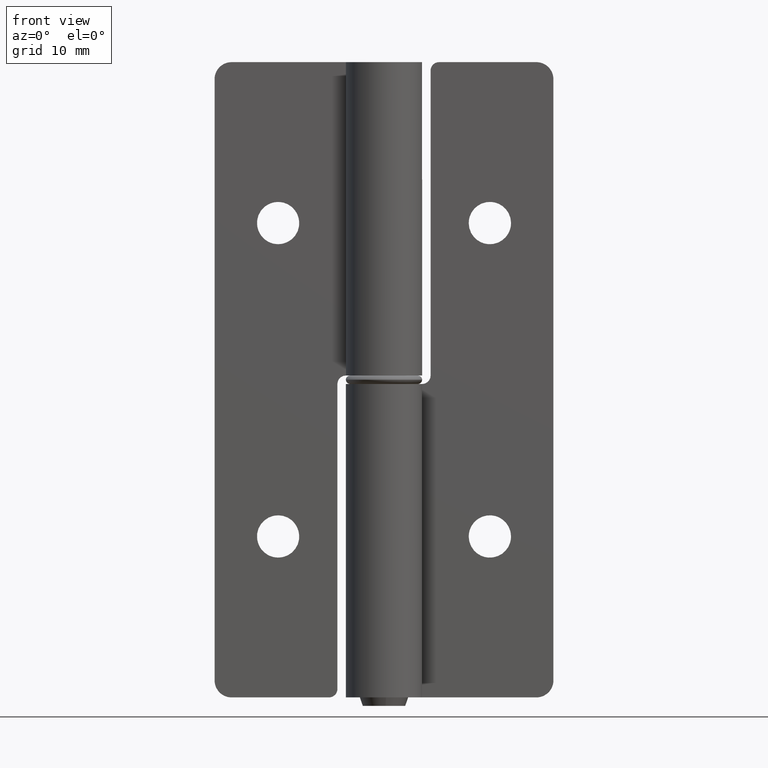
[diagram: clean part render]
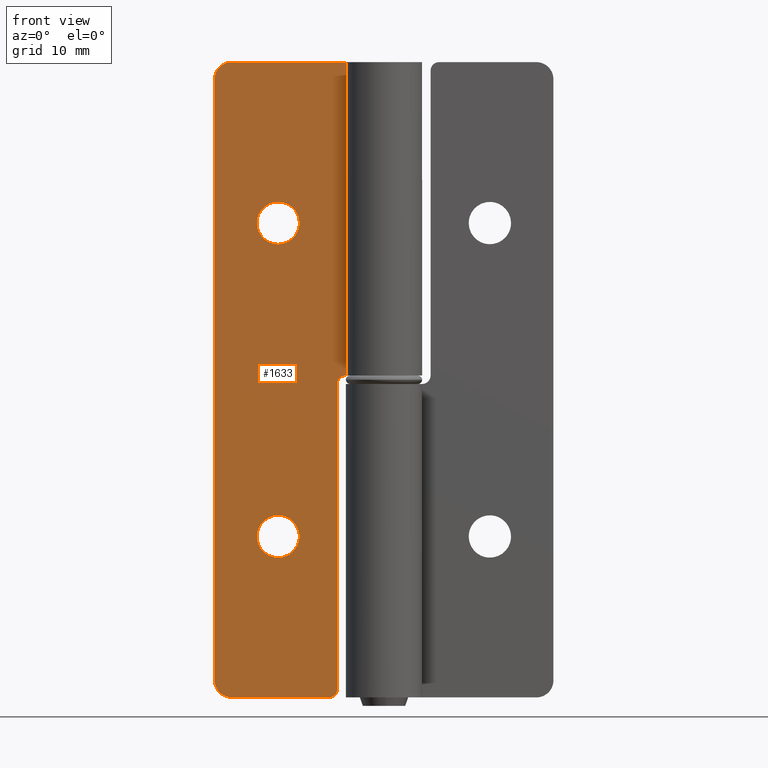
[diagram: same view with one face highlighted and labeled with its STEP entity id]
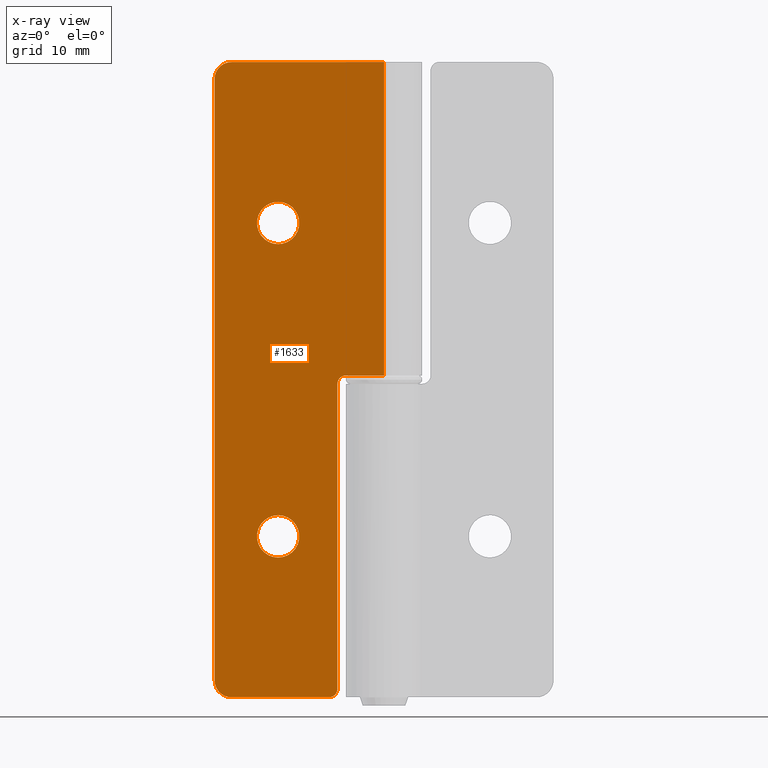
[diagram: x-ray of the same camera — body ghosted, the highlighted face saturated]
A machine part, front view. The second image highlights one B-rep face of the part: STEP entity #1633.
The next image is the same camera in x-ray: the body ghosted, the highlighted face saturated — about 0% of this face is hidden behind the body in this view.
In plain terms, the highlighted face is a freeform B-spline surface patch.
Its self-contained STEP definition (entity closure, byte-faithful):
#1160=CARTESIAN_POINT('',(-12.500000000000140,2.499999999999945,53.500000000000000));
#1161=VERTEX_POINT('',#1160);
#1162=CARTESIAN_POINT('',(-10.876382457319361,2.500000000000352,54.098982884062387));
#1163=VERTEX_POINT('',#1162);
#1164=CARTESIAN_POINT('',(-12.500000000000140,2.499999999999945,53.500000000000000));
#1165=CARTESIAN_POINT('',(-11.577703233191032,2.500000000000148,53.500000000000881));
#1166=CARTESIAN_POINT('',(-10.876382457319357,2.500000000000352,54.098982884062394));
#1174=(BOUNDED_CURVE()B_SPLINE_CURVE(2,(#1164,#1165,#1166),.UNSPECIFIED.,.F.,.U.)B_SPLINE_CURVE_WITH_KNOTS((3,3),(0.0,0.113142956399866),.UNSPECIFIED.)CURVE()GEOMETRIC_REPRESENTATION_ITEM()RATIONAL_B_SPLINE_CURVE((1.0,0.867444781255893,0.854871077191299))REPRESENTATION_ITEM(''));
#1175=EDGE_CURVE('',#1161,#1163,#1174,.T.);
#1216=CARTESIAN_POINT('',(-14.123617542680931,2.500000000000352,57.901017115937599));
#1217=VERTEX_POINT('',#1216);
#1223=CARTESIAN_POINT('',(-14.123617542680931,2.500000000000352,57.901017115937599));
#1224=CARTESIAN_POINT('',(-14.280336642357980,2.500000000000349,57.767213135960468));
#1225=CARTESIAN_POINT('',(-14.582004050924150,2.500000000000325,57.437005605738022));
#1226=CARTESIAN_POINT('',(-14.852461163643479,2.500000000000294,56.909867344727118));
#1227=CARTESIAN_POINT('',(-14.980079275691430,2.500000000000254,56.400610922969307));
#1228=CARTESIAN_POINT('',(-15.012080633061499,2.500000000000234,55.972275443136702));
#1229=CARTESIAN_POINT('',(-14.963016923892759,2.500000000000171,55.465556580316729));
#1230=CARTESIAN_POINT('',(-14.769650093389931,2.500000000000131,54.872556174301302));
#1231=CARTESIAN_POINT('',(-14.407060806353950,2.500000000000069,54.343468631053099));
#1232=CARTESIAN_POINT('',(-13.929344895587841,2.500000000000023,53.922145391152171));
#1233=CARTESIAN_POINT('',(-13.324109761566380,2.499999999999978,53.595709955453302));
#1234=CARTESIAN_POINT('',(-12.801193511983200,2.499999999999953,53.499752994745300));
#1235=CARTESIAN_POINT('',(-12.500000000000140,2.499999999999945,53.500000000000000));
#1236=B_SPLINE_CURVE_WITH_KNOTS('',3,(#1223,#1224,#1225,#1226,#1227,#1228,#1229,#1230,#1231,#1232,#1233,#1234,#1235),.UNSPECIFIED.,.F.,.U.,(4,1,1,1,1,1,1,1,1,1,4),(0.000000074324507,0.618217560293877,1.331543754147683,1.759530250661867,2.187425377031808,2.615470415464582,3.281209286369857,4.042101598057029,4.517648837522545,5.183428656555207,6.086930906835336),.UNSPECIFIED.);
#1237=EDGE_CURVE('',#1217,#1161,#1236,.T.);
#1260=CARTESIAN_POINT('',(-12.500000000000140,2.499999999999945,58.500000000000000));
#1261=VERTEX_POINT('',#1260);
#1262=CARTESIAN_POINT('',(-10.876382457319361,2.500000000000352,54.098982884062387));
#1263=CARTESIAN_POINT('',(-10.719665353697680,2.500000000000345,54.232786958979098));
#1264=CARTESIAN_POINT('',(-10.417984817550529,2.500000000000329,54.562992661480457));
#1265=CARTESIAN_POINT('',(-10.147570330855549,2.500000000000295,55.090137113619740));
#1266=CARTESIAN_POINT('',(-10.000496795613889,2.500000000000249,55.676546695950577));
#1267=CARTESIAN_POINT('',(-9.986258412994092,2.500000000000205,56.204066175586597));
#1268=CARTESIAN_POINT('',(-10.088163026517160,2.500000000000166,56.703298884999732));
#1269=CARTESIAN_POINT('',(-10.244358253404011,2.500000000000126,57.103107427674502));
#1270=CARTESIAN_POINT('',(-10.454940881871281,2.500000000000094,57.459130242743932));
#1271=CARTESIAN_POINT('',(-10.784945696350359,2.500000000000033,57.846823979650139));
#1272=CARTESIAN_POINT('',(-11.206117701154740,2.500000000000023,58.164814528701328));
#1273=CARTESIAN_POINT('',(-11.802668273923960,2.499999999999962,58.430074743721150));
#1274=CARTESIAN_POINT('',(-12.230512697950431,2.499999999999957,58.500179039604802));
#1275=CARTESIAN_POINT('',(-12.500000000000140,2.499999999999945,58.500000000000000));
#1276=B_SPLINE_CURVE_WITH_KNOTS('',3,(#1262,#1263,#1264,#1265,#1266,#1267,#1268,#1269,#1270,#1271,#1272,#1273,#1274,#1275),.UNSPECIFIED.,.F.,.U.,(4,1,1,1,1,1,1,1,1,1,1,4),(0.000000074327796,0.618217560297129,1.331543754151031,1.759530250664761,2.425213370837776,2.900801197558387,3.281209286371289,3.709221679559501,4.137213149144320,4.802975438079724,5.278547753897241,6.086930906835341),.UNSPECIFIED.);
#1277=EDGE_CURVE('',#1163,#1261,#1276,.T.);
#1279=CARTESIAN_POINT('',(-12.500000000000140,2.499999999999945,58.500000000000000));
#1280=CARTESIAN_POINT('',(-13.422296766809255,2.500000000000149,58.499999999999133));
#1281=CARTESIAN_POINT('',(-14.123617542680922,2.500000000000352,57.901017115937606));
#1289=(BOUNDED_CURVE()B_SPLINE_CURVE(2,(#1279,#1280,#1281),.UNSPECIFIED.,.F.,.U.)B_SPLINE_CURVE_WITH_KNOTS((3,3),(0.500000000000000,0.613142956399866),.UNSPECIFIED.)CURVE()GEOMETRIC_REPRESENTATION_ITEM()RATIONAL_B_SPLINE_CURVE((1.0,0.867444781255893,0.854871077191299))REPRESENTATION_ITEM(''));
#1290=EDGE_CURVE('',#1261,#1217,#1289,.T.);
#1345=CARTESIAN_POINT('',(-12.500000000000140,2.499999999999945,16.500000000000000));
#1346=VERTEX_POINT('',#1345);
#1347=CARTESIAN_POINT('',(-10.876382457319350,2.500000000000352,17.098982884062401));
#1348=VERTEX_POINT('',#1347);
#1349=CARTESIAN_POINT('',(-12.500000000000140,2.499999999999945,16.500000000000000));
#1350=CARTESIAN_POINT('',(-11.577703233191029,2.500000000000149,16.500000000000874));
#1351=CARTESIAN_POINT('',(-10.876382457319353,2.500000000000352,17.098982884062398));
#1359=(BOUNDED_CURVE()B_SPLINE_CURVE(2,(#1349,#1350,#1351),.UNSPECIFIED.,.F.,.U.)B_SPLINE_CURVE_WITH_KNOTS((3,3),(0.0,0.113142956399866),.UNSPECIFIED.)CURVE()GEOMETRIC_REPRESENTATION_ITEM()RATIONAL_B_SPLINE_CURVE((1.0,0.867444781255892,0.854871077191299))REPRESENTATION_ITEM(''));
#1360=EDGE_CURVE('',#1346,#1348,#1359,.T.);
#1401=CARTESIAN_POINT('',(-14.123617542680931,2.500000000000352,20.901017115937599));
#1402=VERTEX_POINT('',#1401);
#1408=CARTESIAN_POINT('',(-14.123617542680931,2.500000000000352,20.901017115937599));
#1409=CARTESIAN_POINT('',(-14.280342932808150,2.500000000000350,20.767217023112750));
#1410=CARTESIAN_POINT('',(-14.581992090577060,2.500000000000326,20.437009589961111));
#1411=CARTESIAN_POINT('',(-14.889045430432949,2.500000000000290,19.838621775210861));
#1412=CARTESIAN_POINT('',(-15.008603442995261,2.500000000000244,19.242814333219808));
#1413=CARTESIAN_POINT('',(-14.998409386871890,2.500000000000202,18.749750771730461));
#1414=CARTESIAN_POINT('',(-14.906308598343131,2.500000000000161,18.249465399560119));
#1415=CARTESIAN_POINT('',(-14.668852648660581,2.500000000000106,17.689182727120709));
#1416=CARTESIAN_POINT('',(-14.242614837335900,2.500000000000054,17.168918810711041));
#1417=CARTESIAN_POINT('',(-13.790583978637050,2.500000000000010,16.841029979159739));
#1418=CARTESIAN_POINT('',(-13.228994885715640,2.499999999999974,16.578296822248639));
#1419=CARTESIAN_POINT('',(-12.801209139517621,2.499999999999953,16.499743789160561));
#1420=CARTESIAN_POINT('',(-12.500000000000140,2.499999999999945,16.500000000000000));
#1421=B_SPLINE_CURVE_WITH_KNOTS('',3,(#1408,#1409,#1410,#1411,#1412,#1413,#1414,#1415,#1416,#1417,#1418,#1419,#1420),.UNSPECIFIED.,.F.,.U.,(4,1,1,1,1,1,1,1,1,1,4),(0.000000074327624,0.618217560296613,1.331543754150381,1.997309046539155,2.425213370837764,2.805653877333417,3.518990014435760,4.232321169525985,4.802975438079313,5.183428656555062,6.086930906835332),.UNSPECIFIED.);
#1422=EDGE_CURVE('',#1402,#1346,#1421,.T.);
#1445=CARTESIAN_POINT('',(-12.500000000000140,2.499999999999945,21.500000000000000));
#1446=VERTEX_POINT('',#1445);
#1447=CARTESIAN_POINT('',(-10.876382457319350,2.500000000000352,17.098982884062401));
#1448=CARTESIAN_POINT('',(-10.743785951002661,2.500000000000346,17.212209264186441));
#1449=CARTESIAN_POINT('',(-10.480447871797510,2.500000000000334,17.489659543117490));
#1450=CARTESIAN_POINT('',(-10.156798240461750,2.500000000000305,18.040532694992230));
#1451=CARTESIAN_POINT('',(-9.978596999840468,2.500000000000218,18.723238140679008));
#1452=CARTESIAN_POINT('',(-10.003392237125130,2.500000000000213,19.347235849845379));
#1453=CARTESIAN_POINT('',(-10.129363733235470,2.500000000000149,19.823676586198388));
#1454=CARTESIAN_POINT('',(-10.300620262409200,2.500000000000116,20.217250195690291));
#1455=CARTESIAN_POINT('',(-10.567103608865210,2.500000000000076,20.614261574279091));
#1456=CARTESIAN_POINT('',(-10.978873774629520,2.500000000000031,21.013868861944552));
#1457=CARTESIAN_POINT('',(-11.474840404049910,2.499999999999990,21.306222205744518));
#1458=CARTESIAN_POINT('',(-12.008636366608959,2.499999999999963,21.468243051069141));
#1459=CARTESIAN_POINT('',(-12.341500951360430,2.499999999999950,21.500013918531678));
#1460=CARTESIAN_POINT('',(-12.500000000000140,2.499999999999945,21.500000000000000));
#1461=B_SPLINE_CURVE_WITH_KNOTS('',3,(#1447,#1448,#1449,#1450,#1451,#1452,#1453,#1454,#1455,#1456,#1457,#1458,#1459,#1460),.UNSPECIFIED.,.F.,.U.,(4,1,1,1,1,1,1,1,1,1,1,4),(0.000000074328178,0.523096819058107,1.141317920091738,1.902181426216839,2.615470415467204,2.995877213637523,3.376326897770434,3.899436858093838,4.422546086762807,5.088300084256360,5.611428042491841,6.086930906835335),.UNSPECIFIED.);
#1462=EDGE_CURVE('',#1348,#1446,#1461,.T.);
#1464=CARTESIAN_POINT('',(-12.500000000000140,2.499999999999945,21.500000000000000));
#1465=CARTESIAN_POINT('',(-13.422296766809250,2.500000000000148,21.499999999999133));
#1466=CARTESIAN_POINT('',(-14.123617542680924,2.500000000000352,20.901017115937609));
#1474=(BOUNDED_CURVE()B_SPLINE_CURVE(2,(#1464,#1465,#1466),.UNSPECIFIED.,.F.,.U.)B_SPLINE_CURVE_WITH_KNOTS((3,3),(0.500000000000000,0.613142956399866),.UNSPECIFIED.)CURVE()GEOMETRIC_REPRESENTATION_ITEM()RATIONAL_B_SPLINE_CURVE((1.0,0.867444781255892,0.854871077191299))REPRESENTATION_ITEM(''));
#1475=EDGE_CURVE('',#1446,#1402,#1474,.T.);
#1512=CARTESIAN_POINT('',(-20.998999961219120,2.500000000000000,78.746249854635451));
#1513=CARTESIAN_POINT('',(-20.998999961219120,2.500000000000000,-3.746251866292208));
#1514=CARTESIAN_POINT('',(0.999000497694768,2.500000000000000,78.746249854635451));
#1515=CARTESIAN_POINT('',(0.999000497694768,2.500000000000000,-3.746251866292208));
#1516=B_SPLINE_SURFACE_WITH_KNOTS('',1,1,((#1512,#1514),(#1513,#1515)),.UNSPECIFIED.,.F.,.F.,.U.,(2,2),(2,2),(0.0,82.492501720927663),(0.0,21.998000458913879),.UNSPECIFIED.);
#1517=CARTESIAN_POINT('',(-19.999999999983000,2.500000000000000,73.0));
#1518=VERTEX_POINT('',#1517);
#1519=CARTESIAN_POINT('',(-19.999999999983000,2.500000000000000,2.0));
#1520=VERTEX_POINT('',#1519);
#1521=CARTESIAN_POINT('',(-19.999999999983000,2.500000000000000,73.0));
#1522=CARTESIAN_POINT('',(-19.999999999983000,2.500000000000000,2.0));
#1523=QUASI_UNIFORM_CURVE('',1,(#1521,#1522),.UNSPECIFIED.,.F.,.U.);
#1524=EDGE_CURVE('',#1518,#1520,#1523,.T.);
#1525=ORIENTED_EDGE('',*,*,#1524,.T.);
#1526=CARTESIAN_POINT('',(-17.999999999983000,2.500000000000000,0.0));
#1527=VERTEX_POINT('',#1526);
#1528=CARTESIAN_POINT('',(-19.999999999983000,2.500000000000000,2.0));
#1529=CARTESIAN_POINT('',(-19.999999999983000,2.500000000000000,0.0));
#1530=CARTESIAN_POINT('',(-17.999999999983000,2.500000000000000,0.0));
#1538=(BOUNDED_CURVE()B_SPLINE_CURVE(2,(#1528,#1529,#1530),.UNSPECIFIED.,.F.,.U.)CURVE()GEOMETRIC_REPRESENTATION_ITEM()QUASI_UNIFORM_CURVE()RATIONAL_B_SPLINE_CURVE((1.0,0.707106781186548,1.0))REPRESENTATION_ITEM(''));
#1539=EDGE_CURVE('',#1520,#1527,#1538,.T.);
#1540=ORIENTED_EDGE('',*,*,#1539,.T.);
#1541=CARTESIAN_POINT('',(-6.500000000000000,2.500000000000000,0.0));
#1542=VERTEX_POINT('',#1541);
#1543=CARTESIAN_POINT('',(-6.500000000000000,2.500000000000000,0.0));
#1544=CARTESIAN_POINT('',(-17.999999999983000,2.500000000000000,0.0));
#1545=QUASI_UNIFORM_CURVE('',1,(#1543,#1544),.UNSPECIFIED.,.F.,.U.);
#1546=EDGE_CURVE('',#1542,#1527,#1545,.T.);
#1547=ORIENTED_EDGE('',*,*,#1546,.F.);
#1548=CARTESIAN_POINT('',(-5.500000000000000,2.500000000000000,1.0));
#1549=VERTEX_POINT('',#1548);
#1550=CARTESIAN_POINT('',(-6.500000000000000,2.500000000000000,0.0));
#1551=CARTESIAN_POINT('',(-5.500000000000001,2.499999999999945,0.0));
#1552=CARTESIAN_POINT('',(-5.500000000000000,2.499999999999945,1.0));
#1560=(BOUNDED_CURVE()B_SPLINE_CURVE(2,(#1550,#1551,#1552),.UNSPECIFIED.,.F.,.U.)CURVE()GEOMETRIC_REPRESENTATION_ITEM()QUASI_UNIFORM_CURVE()RATIONAL_B_SPLINE_CURVE((1.0,0.707106781186548,1.0))REPRESENTATION_ITEM(''));
#1561=EDGE_CURVE('',#1542,#1549,#1560,.T.);
#1562=ORIENTED_EDGE('',*,*,#1561,.T.);
#1563=CARTESIAN_POINT('',(-5.500000000000000,2.500000000000000,37.0));
#1564=VERTEX_POINT('',#1563);
#1565=CARTESIAN_POINT('',(-5.500000000000000,2.500000000000000,1.0));
#1566=CARTESIAN_POINT('',(-5.500000000000000,2.500000000000000,37.0));
#1567=QUASI_UNIFORM_CURVE('',1,(#1565,#1566),.UNSPECIFIED.,.F.,.U.);
#1568=EDGE_CURVE('',#1549,#1564,#1567,.T.);
#1569=ORIENTED_EDGE('',*,*,#1568,.T.);
#1570=CARTESIAN_POINT('',(-4.500000000000000,2.500000000000000,38.0));
#1571=VERTEX_POINT('',#1570);
#1572=CARTESIAN_POINT('',(-5.500000000000000,2.499999999999945,37.0));
#1573=CARTESIAN_POINT('',(-5.500000000000001,2.499999999999945,38.0));
#1574=CARTESIAN_POINT('',(-4.500000000000000,2.499999999999945,38.0));
#1582=(BOUNDED_CURVE()B_SPLINE_CURVE(2,(#1572,#1573,#1574),.UNSPECIFIED.,.F.,.U.)CURVE()GEOMETRIC_REPRESENTATION_ITEM()QUASI_UNIFORM_CURVE()RATIONAL_B_SPLINE_CURVE((1.0,0.707106781186548,1.0))REPRESENTATION_ITEM(''));
#1583=EDGE_CURVE('',#1564,#1571,#1582,.T.);
#1584=ORIENTED_EDGE('',*,*,#1583,.T.);
#1585=CARTESIAN_POINT('',(1.685423E-011,2.500000000000000,38.0));
#1586=VERTEX_POINT('',#1585);
#1587=CARTESIAN_POINT('',(-4.500000000000000,2.500000000000000,38.0));
#1588=CARTESIAN_POINT('',(1.685423E-011,2.500000000000000,38.0));
#1589=QUASI_UNIFORM_CURVE('',1,(#1587,#1588),.UNSPECIFIED.,.F.,.U.);
#1590=EDGE_CURVE('',#1571,#1586,#1589,.T.);
#1591=ORIENTED_EDGE('',*,*,#1590,.T.);
#1592=CARTESIAN_POINT('',(1.685423E-011,2.500000000000075,75.0));
#1593=VERTEX_POINT('',#1592);
#1594=CARTESIAN_POINT('',(1.685423E-011,2.500000000000075,75.0));
#1595=CARTESIAN_POINT('',(1.685423E-011,2.500000000000000,38.0));
#1596=QUASI_UNIFORM_CURVE('',1,(#1594,#1595),.UNSPECIFIED.,.F.,.U.);
#1597=EDGE_CURVE('',#1593,#1586,#1596,.T.);
#1598=ORIENTED_EDGE('',*,*,#1597,.F.);
#1599=CARTESIAN_POINT('',(-17.999999999983000,2.500000000000000,75.0));
#1600=VERTEX_POINT('',#1599);
#1601=CARTESIAN_POINT('',(1.685423E-011,2.500000000000075,75.0));
#1602=CARTESIAN_POINT('',(-17.999999999983000,2.500000000000000,75.0));
#1603=QUASI_UNIFORM_CURVE('',1,(#1601,#1602),.UNSPECIFIED.,.F.,.U.);
#1604=EDGE_CURVE('',#1593,#1600,#1603,.T.);
#1605=ORIENTED_EDGE('',*,*,#1604,.T.);
#1606=CARTESIAN_POINT('',(-17.999999999983000,2.500000000000000,75.0));
#1607=CARTESIAN_POINT('',(-19.999999999983000,2.500000000000000,75.000000000000014));
#1608=CARTESIAN_POINT('',(-19.999999999983000,2.500000000000000,73.0));
#1616=(BOUNDED_CURVE()B_SPLINE_CURVE(2,(#1606,#1607,#1608),.UNSPECIFIED.,.F.,.U.)CURVE()GEOMETRIC_REPRESENTATION_ITEM()QUASI_UNIFORM_CURVE()RATIONAL_B_SPLINE_CURVE((1.0,0.707106781186548,1.0))REPRESENTATION_ITEM(''));
#1617=EDGE_CURVE('',#1600,#1518,#1616,.T.);
#1618=ORIENTED_EDGE('',*,*,#1617,.T.);
#1619=EDGE_LOOP('',(#1525,#1540,#1547,#1562,#1569,#1584,#1591,#1598,#1605,#1618));
#1620=FACE_OUTER_BOUND('',#1619,.T.);
#1621=ORIENTED_EDGE('',*,*,#1475,.F.);
#1622=ORIENTED_EDGE('',*,*,#1462,.F.);
#1623=ORIENTED_EDGE('',*,*,#1360,.F.);
#1624=ORIENTED_EDGE('',*,*,#1422,.F.);
#1625=EDGE_LOOP('',(#1621,#1622,#1623,#1624));
#1626=FACE_BOUND('',#1625,.T.);
#1627=ORIENTED_EDGE('',*,*,#1290,.F.);
#1628=ORIENTED_EDGE('',*,*,#1277,.F.);
#1629=ORIENTED_EDGE('',*,*,#1175,.F.);
#1630=ORIENTED_EDGE('',*,*,#1237,.F.);
#1631=EDGE_LOOP('',(#1627,#1628,#1629,#1630));
#1632=FACE_BOUND('',#1631,.T.);
#1633=ADVANCED_FACE('',(#1620,#1626,#1632),#1516,.T.);